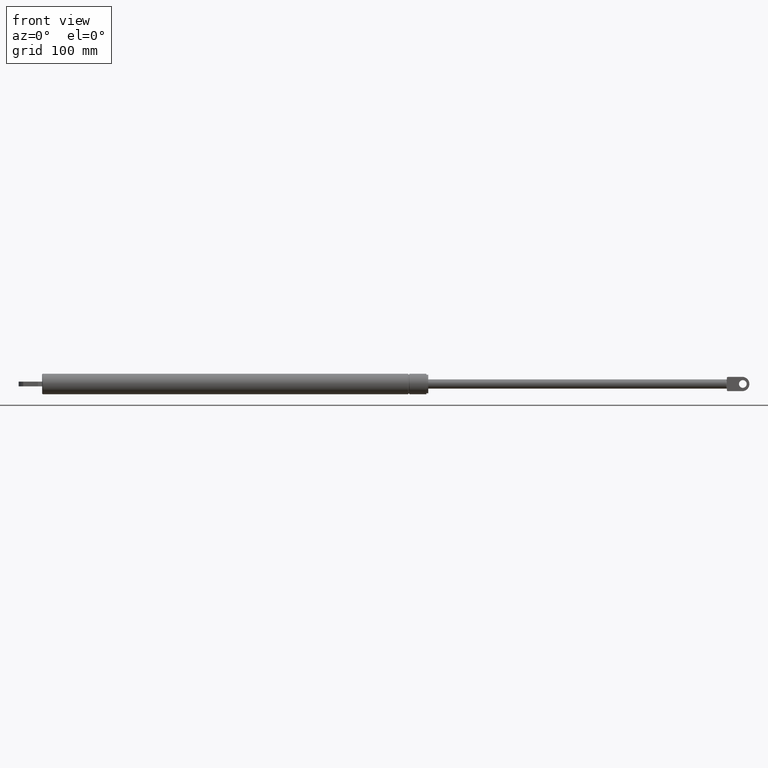
[diagram: clean part render]
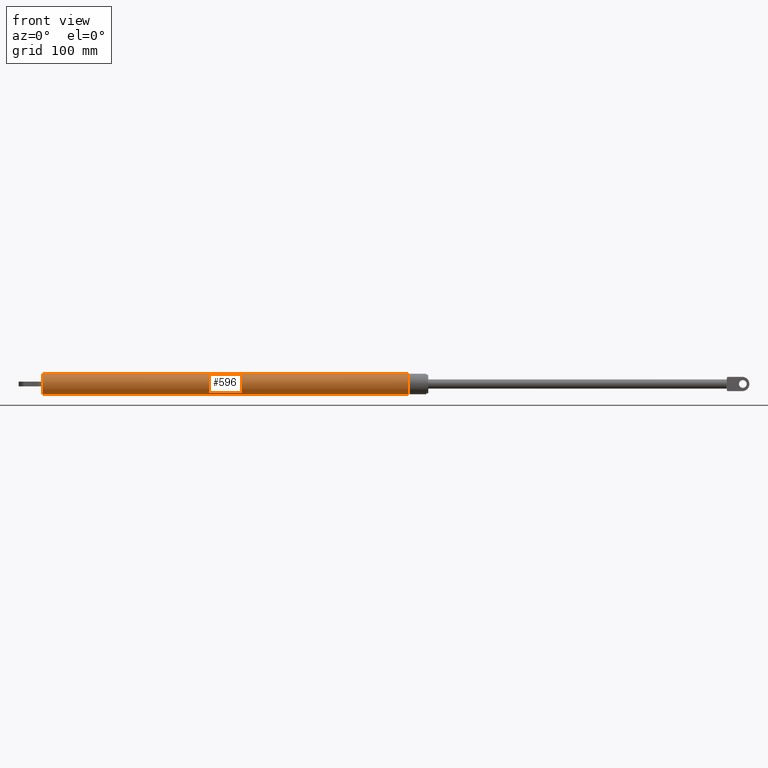
[diagram: same view with one face highlighted and labeled with its STEP entity id]
A machine part, front view. The second image highlights one B-rep face of the part: STEP entity #596.
In plain terms, the highlighted cylindrical surface (bore or boss wall) has radius 11 mm, axis along (1, 0, 0).
Its self-contained STEP definition (entity closure, byte-faithful):
#42=FACE_BOUND('',#207,.T.);
#132=CYLINDRICAL_SURFACE('',#655,11.);
#161=FACE_OUTER_BOUND('',#206,.T.);
#206=EDGE_LOOP('',(#507));
#207=EDGE_LOOP('',(#508));
#248=CIRCLE('',#653,11.);
#249=CIRCLE('',#656,11.);
#305=VERTEX_POINT('',#1011);
#306=VERTEX_POINT('',#1015);
#376=EDGE_CURVE('',#305,#305,#248,.T.);
#377=EDGE_CURVE('',#306,#306,#249,.T.);
#507=ORIENTED_EDGE('',*,*,#377,.F.);
#508=ORIENTED_EDGE('',*,*,#376,.F.);
#596=ADVANCED_FACE('',(#161,#42),#132,.T.);
#653=AXIS2_PLACEMENT_3D('',#1012,#802,#803);
#655=AXIS2_PLACEMENT_3D('',#1014,#806,#807);
#656=AXIS2_PLACEMENT_3D('',#1016,#808,#809);
#802=DIRECTION('center_axis',(-1.,-1.83697019872103E-16,0.));
#803=DIRECTION('ref_axis',(1.89242561015651E-16,-1.,1.83697019872103E-16));
#806=DIRECTION('center_axis',(1.,1.83697019872103E-16,0.));
#807=DIRECTION('ref_axis',(0.,1.,0.));
#808=DIRECTION('center_axis',(1.,1.83697019872103E-16,0.));
#809=DIRECTION('ref_axis',(0.,0.,-1.));
#1011=CARTESIAN_POINT('',(1.00000000000001,11.,-3.36777869765522E-15));
#1012=CARTESIAN_POINT('Origin',(1.00000000000001,1.836970198721E-16,0.));
#1014=CARTESIAN_POINT('Origin',(194.35,3.57015158121432E-14,0.));
#1015=CARTESIAN_POINT('',(388.7,11.0000000000001,0.));
#1016=CARTESIAN_POINT('Origin',(388.7,7.14030316242864E-14,0.));